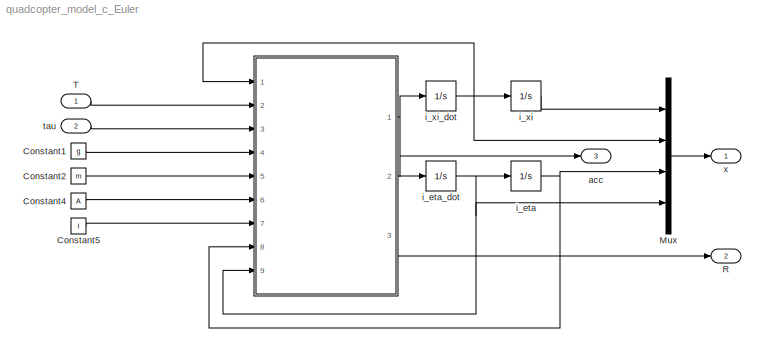
MODEL quadcopter_model_c_Euler
KIND model
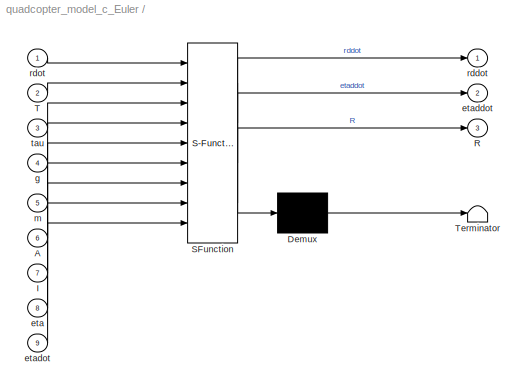
BLOCK [SubSystem]  
  ErrorFcn = Stateflow.Translate.translate
  PermitHierarchicalResolution = ExplicitOnly
  Ports = [9, 3]
  RequestExecContextInheritance = off
  SFBlockType = MATLAB Function
  SID = 2
  TreatAsAtomicUnit = on
  Variant = off
BLOCK [Demux]  / Demux 
  Outputs = 1
  Ports = [1, 1]
  SID = 2::33
BLOCK [S-Function]  / SFunction 
  EnableBusSupport = on
  FunctionName = sf_sfun
  PortCounts = [9 4]
  Ports = [9, 4]
  SFunctionDeploymentMode = off
  SID = 2::32
  Tag = Stateflow S-Function quadcopter_model_c_Euler 2
BLOCK [Terminator]  / Terminator 
  SID = 2::34
BLOCK [Inport]  /A
  IconDisplay = Port number
  Port = 6
  SID = 2::26
BLOCK [Inport]  /I
  IconDisplay = Port number
  Port = 7
  SID = 2::27
BLOCK [Outport]  /R
  IconDisplay = Port number
  Port = 3
  SID = 2::31
BLOCK [Inport]  /T
  IconDisplay = Port number
  Port = 2
  SID = 2::1
BLOCK [Inport]  /eta
  IconDisplay = Port number
  Port = 8
  SID = 2::20
BLOCK [Outport]  /etaddot
  IconDisplay = Port number
  Port = 2
  SID = 2::22
BLOCK [Inport]  /etadot
  IconDisplay = Port number
  Port = 9
  SID = 2::21
BLOCK [Inport]  /g
  IconDisplay = Port number
  Port = 4
  SID = 2::23
BLOCK [Inport]  /m
  IconDisplay = Port number
  Port = 5
  SID = 2::24
BLOCK [Outport]  /rddot
  IconDisplay = Port number
  SID = 2::5
BLOCK [Inport]  /rdot
  IconDisplay = Port number
  SID = 2::19
BLOCK [Inport]  /tau
  IconDisplay = Port number
  Port = 3
  SID = 2::35
BLOCK [Constant] Constant1
  SID = 12
  Value = g
BLOCK [Constant] Constant2
  SID = 13
  Value = m
BLOCK [Constant] Constant4
  SID = 15
  Value = A
BLOCK [Constant] Constant5
  SID = 16
  Value = I
BLOCK [Mux] Mux
  DisplayOption = bar
  Ports = [4, 1]
  SID = 119
BLOCK [Outport] R
  IconDisplay = Port number
  Port = 2
  SID = 116
BLOCK [Inport] T
  IconDisplay = Port number
  PortDimensions = 1
  SID = 113
BLOCK [Outport] acc
  IconDisplay = Port number
  Port = 3
  SID = 122
BLOCK [Integrator] i_eta
  InitialCondition = initial_eta
  Ports = [1, 1]
  SID = 7
BLOCK [Integrator] i_eta_dot
  InitialCondition = initial_etadot
  Ports = [1, 1]
  SID = 4
BLOCK [Integrator] i_xi
  InitialCondition = initial_xi
  Ports = [1, 1]
  SID = 6
BLOCK [Integrator] i_xi_dot
  InitialCondition = initial_xidot
  Ports = [1, 1]
  SID = 5
BLOCK [Inport] tau
  IconDisplay = Port number
  Port = 2
  PortDimensions = 3
  SID = 121
BLOCK [Outport] x
  IconDisplay = Port number
  SID = 118
LINE  / Demux :1 ->  / Terminator :1
LINE  / SFunction :1 ->  / Demux :1
LINE  / SFunction :2 ->  /rddot:1
LINE  / SFunction :3 ->  /etaddot:1
LINE  / SFunction :4 ->  /R:1
LINE  /A:1 ->  / SFunction :6
LINE  /I:1 ->  / SFunction :7
LINE  /T:1 ->  / SFunction :2
LINE  /eta:1 ->  / SFunction :8
LINE  /etadot:1 ->  / SFunction :9
LINE  /g:1 ->  / SFunction :4
LINE  /m:1 ->  / SFunction :5
LINE  /rdot:1 ->  / SFunction :1
LINE  /tau:1 ->  / SFunction :3
NET  :1 -> acc:1, i_xi_dot:1
LINE  :2 -> i_eta_dot:1
LINE  :3 -> R:1
LINE Constant1:1 ->  :4
LINE Constant2:1 ->  :5
LINE Constant4:1 ->  :6
LINE Constant5:1 ->  :7
LINE Mux:1 -> x:1
LINE T:1 ->  :2
NET i_eta:1 ->  :8, Mux:3
NET i_eta_dot:1 ->  :9, Mux:4, i_eta:1
LINE i_xi:1 -> Mux:1
NET i_xi_dot:1 ->  :1, Mux:2, i_xi:1
LINE tau:1 ->  :3
note: NET lines group one-source signal fan-out (src -> all destinations, sorted); 1:1 wires keep LINE
CHART   states=1 transitions=1
  STATE_LABEL 'eML_blk_kernel()'
